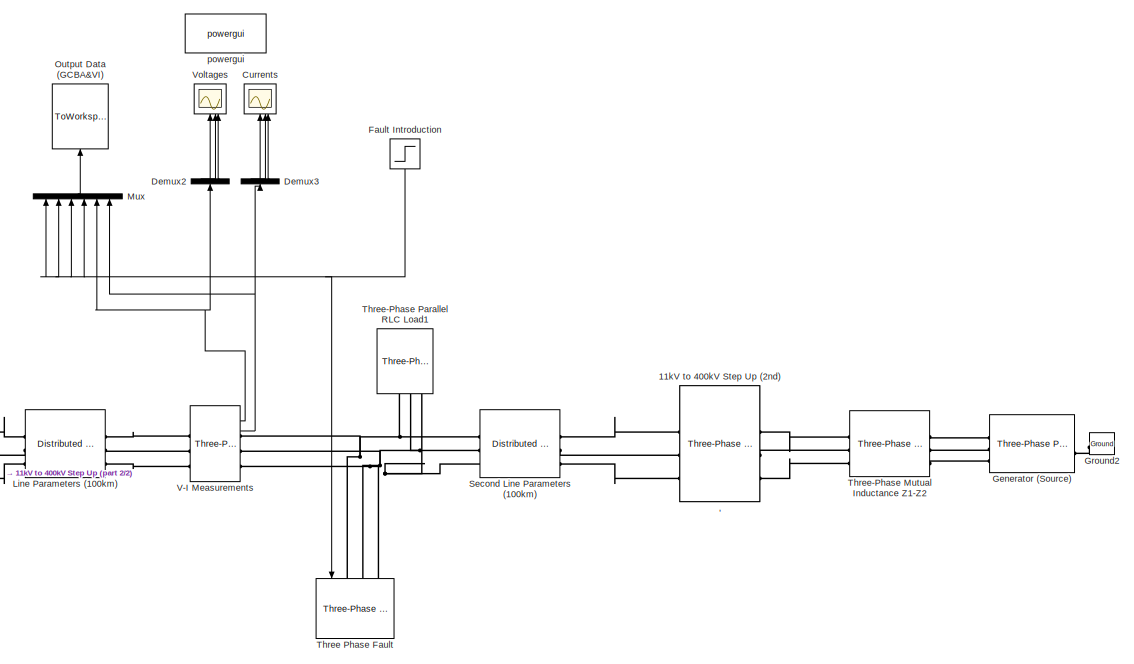
[diagram: root canvas - part 1/2, center side, full height]
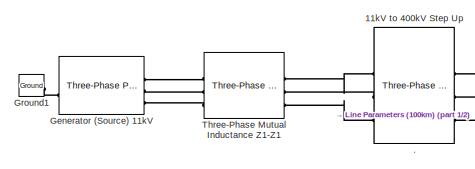
[diagram: root canvas - part 2/2, bottom left region]
MODEL slx_ed49bb780b08
KIND model
CONFIG AbsTol = auto
CONFIG EnableMultiTasking = off
CONFIG FixedStep = auto
CONFIG MaxStep = auto
CONFIG MinStep = auto
CONFIG RelTol = 1e-3
CONFIG SampleTimeConstraint = Unconstrained
CONFIG SolverName = VariableStepAuto
CONFIG StartTime = 0.0
CONFIG StopTime = 1
BLOCK [Reference] ,  REF=spsThreePhaseTransformerTwoWindingsLib/Three-Phase
Transformer
(Two Windings)
  LibrarySourceBlock = sps_lib/Power Grid Elements/Three-Phase\nTransformer\n(Two Windings)
  SourceBlock = spsThreePhaseTransformerTwoWindingsLib/Three-Phase\nTransformer\n(Two Windings)
  SourceType = Three-Phase Transformer (Two Windings)
BLOCK [Reference] .  REF=spsThreePhaseTransformerTwoWindingsLib/Three-Phase
Transformer
(Two Windings)
  LibrarySourceBlock = sps_lib/Power Grid Elements/Three-Phase\nTransformer\n(Two Windings)
  SourceBlock = spsThreePhaseTransformerTwoWindingsLib/Three-Phase\nTransformer\n(Two Windings)
  SourceType = Three-Phase Transformer (Two Windings)
BLOCK [Reference] 11kV to 400kV Step Up  REF=spsThreePhaseTransformerTwoWindingsLib/Three-Phase
Transformer
(Two Windings)
  LibrarySourceBlock = sps_lib/Power Grid Elements/Three-Phase\nTransformer\n(Two Windings)
  SourceBlock = spsThreePhaseTransformerTwoWindingsLib/Three-Phase\nTransformer\n(Two Windings)
  SourceType = Three-Phase Transformer (Two Windings)
BLOCK [Reference] 11kV to 400kV Step Up (2nd)  REF=spsThreePhaseTransformerTwoWindingsLib/Three-Phase
Transformer
(Two Windings)
  LibrarySourceBlock = sps_lib/Power Grid Elements/Three-Phase\nTransformer\n(Two Windings)
  NameLocation = top
  SourceBlock = spsThreePhaseTransformerTwoWindingsLib/Three-Phase\nTransformer\n(Two Windings)
  SourceType = Three-Phase Transformer (Two Windings)
BLOCK [Scope] Currents
  Floating = off
  NameLocation = right
  NumInputPorts = 3
  ScopeSpecificationString = Simulink.scopes.TimeScopeBlockCfg('CurrentConfiguration', extmgr.ConfigurationSet(extmgr.Configuration('Core','General UI',true),extmgr.Configuration('Core','Source UI',true),extmgr.Configuration('Sources','WiredSimulink',true,'DataLoggingVariableName','ScopeData1'),extmgr.Configuration('Visuals','Time Domain',true,'SerializedDisplays',{struct('MinYLimReal','-15.01691','MaxYLimReal','23.92104','YL...<+2783ch>
BLOCK [Demux] Demux2
  NameLocation = right
  Outputs = 3
BLOCK [Demux] Demux3
  NameLocation = right
  Outputs = 3
BLOCK [Step] Fault Introduction
  NameLocation = left
  SampleTime = 0
  Time = 0.1
BLOCK [Reference] Generator (Source)  REF=spsThreePhaseProgrammableVoltageSourceLib/Three-Phase
Programmable
Voltage Source
  LibrarySourceBlock = sps_lib/Sources/Three-Phase\nProgrammable\nVoltage Source
  NameLocation = top
  SourceBlock = spsThreePhaseProgrammableVoltageSourceLib/Three-Phase\nProgrammable\nVoltage Source
  SourceType = Three-Phase Programmable Voltage Source
BLOCK [Reference] Generator (Source) 11kV  REF=spsThreePhaseProgrammableVoltageSourceLib/Three-Phase
Programmable
Voltage Source
  LibrarySourceBlock = sps_lib/Sources/Three-Phase\nProgrammable\nVoltage Source
  SourceBlock = spsThreePhaseProgrammableVoltageSourceLib/Three-Phase\nProgrammable\nVoltage Source
  SourceType = Three-Phase Programmable Voltage Source
BLOCK [Reference] Ground1  REF=spsGroundLib/Ground
  LibrarySourceBlock = sps_lib/Utilities/Ground
  SourceBlock = spsGroundLib/Ground
  SourceType = Ground
BLOCK [Reference] Ground2  REF=spsGroundLib/Ground
  LibrarySourceBlock = sps_lib/Utilities/Ground
  NameLocation = top
  SourceBlock = spsGroundLib/Ground
  SourceType = Ground
BLOCK [Reference] Line Parameters (100km)  REF=spsDistributedParametersLineLib/Distributed Parameters Line
  LibrarySourceBlock = sps_lib/Power Grid Elements/Distributed Parameters Line
  SourceBlock = spsDistributedParametersLineLib/Distributed Parameters Line
  SourceType = Distributed Parameters Line
BLOCK [Mux] Mux
  DisplayOption = bar
  Inputs = 6
  NameLocation = right
BLOCK [ToWorkspace] Output Data (GCBA&VI)
  MaxDataPoints = inf
  NameLocation = right
  SampleTime = -1
  SaveFormat = Timeseries
  VariableName = simout1
BLOCK [Reference] Second Line Parameters (100km)  REF=spsDistributedParametersLineLib/Distributed Parameters Line
  LibrarySourceBlock = sps_lib/Power Grid Elements/Distributed Parameters Line
  NameLocation = top
  SourceBlock = spsDistributedParametersLineLib/Distributed Parameters Line
  SourceType = Distributed Parameters Line
BLOCK [Reference] Three Phase Fault  REF=spsThreePhaseFaultLib/Three-Phase Fault
  LibrarySourceBlock = sps_lib/Power Grid Elements/Three-Phase Fault
  NameLocation = left
  SourceBlock = spsThreePhaseFaultLib/Three-Phase Fault
  SourceType = Three-Phase Fault
BLOCK [Reference] Three-Phase Mutual Inductance Z1-Z1  REF=spsThreePhaseMutualInductanceZ1Z0Lib/Three-Phase
Mutual Inductance
Z1-Z0
  AttributesFormatString = \n
  LibrarySourceBlock = sps_lib/Power Grid Elements/Three-Phase\nMutual Inductance\nZ1-Z0
  SourceBlock = spsThreePhaseMutualInductanceZ1Z0Lib/Three-Phase\nMutual Inductance\nZ1-Z0
  SourceType = Three-Phase Mutual Inductance Z1-Z0
BLOCK [Reference] Three-Phase Mutual Inductance Z1-Z2  REF=spsThreePhaseMutualInductanceZ1Z0Lib/Three-Phase
Mutual Inductance
Z1-Z0
  AttributesFormatString = \n
  LibrarySourceBlock = sps_lib/Power Grid Elements/Three-Phase\nMutual Inductance\nZ1-Z0
  NameLocation = top
  SourceBlock = spsThreePhaseMutualInductanceZ1Z0Lib/Three-Phase\nMutual Inductance\nZ1-Z0
  SourceType = Three-Phase Mutual Inductance Z1-Z0
BLOCK [Reference] Three-Phase Parallel RLC Load1  REF=spsThreePhaseParallelRLCLoadLib/Three-Phase
Parallel RLC Load
  AttributesFormatString = \n
  LibrarySourceBlock = sps_lib/Passives/Three-Phase\nParallel RLC Load
  NameLocation = top
  SourceBlock = spsThreePhaseParallelRLCLoadLib/Three-Phase\nParallel RLC Load
  SourceType = Three-Phase Parallel RLC Load
BLOCK [Reference] V-I Measurements  REF=spsThreePhaseVIMeasurementLib/Three-Phase
V-I Measurement
  LibrarySourceBlock = sps_lib/Sensors and Measurements/Three-Phase\nV-I Measurement
  SourceBlock = spsThreePhaseVIMeasurementLib/Three-Phase\nV-I Measurement
  SourceType = Three-Phase VI Measurement
BLOCK [Scope] Voltages
  Floating = off
  NameLocation = right
  NumInputPorts = 3
  ScopeSpecificationString = Simulink.scopes.TimeScopeBlockCfg('CurrentConfiguration', extmgr.ConfigurationSet(extmgr.Configuration('Core','General UI',true),extmgr.Configuration('Core','Source UI',true),extmgr.Configuration('Sources','WiredSimulink',true,'DataLoggingVariableName','ScopeData2'),extmgr.Configuration('Visuals','Time Domain',true,'SerializedDisplays',{struct('MinYLimReal','-698.14254','MaxYLimReal','698.14258','...<+2800ch>
BLOCK [Reference] powergui  REF=sps_lib/powergui
  LibrarySourceBlock = sps_lib/powergui
  Priority = 1
  SourceBlock = sps_lib/powergui
  SourceType = PSB option menu block
LINE Demux2:1 -> Voltages:1
LINE Demux2:2 -> Voltages:2
LINE Demux2:3 -> Voltages:3
LINE Demux3:1 -> Currents:1
LINE Demux3:2 -> Currents:2
LINE Demux3:3 -> Currents:3
NET Fault Introduction:1 -> Mux:1, Mux:2, Mux:3, Mux:4, Three Phase Fault:1
LINE Mux:1 -> Output Data (GCBA&VI):1
NET V-I Measurements:1 -> Demux2:1, Mux:5
NET V-I Measurements:2 -> Demux3:1, Mux:6
PLINE 11kV to 400kV Step Up (2nd):LConn1 -- Three-Phase Mutual Inductance Z1-Z2:RConn1
PLINE 11kV to 400kV Step Up (2nd):LConn2 -- Three-Phase Mutual Inductance Z1-Z2:RConn2
PLINE 11kV to 400kV Step Up (2nd):LConn3 -- Three-Phase Mutual Inductance Z1-Z2:RConn3
PLINE 11kV to 400kV Step Up (2nd):RConn1 -- Second Line Parameters (100km):LConn1
PLINE 11kV to 400kV Step Up (2nd):RConn2 -- Second Line Parameters (100km):LConn2
PLINE 11kV to 400kV Step Up (2nd):RConn3 -- Second Line Parameters (100km):LConn3
PLINE 11kV to 400kV Step Up:LConn1 -- Three-Phase Mutual Inductance Z1-Z1:RConn1
PLINE 11kV to 400kV Step Up:LConn2 -- Three-Phase Mutual Inductance Z1-Z1:RConn2
PLINE 11kV to 400kV Step Up:LConn3 -- Three-Phase Mutual Inductance Z1-Z1:RConn3
PLINE 11kV to 400kV Step Up:RConn1 -- Line Parameters (100km):LConn1
PLINE 11kV to 400kV Step Up:RConn2 -- Line Parameters (100km):LConn2
PLINE 11kV to 400kV Step Up:RConn3 -- Line Parameters (100km):LConn3
PLINE Generator (Source) 11kV:LConn1 -- Ground1:LConn1
PLINE Generator (Source) 11kV:RConn1 -- Three-Phase Mutual Inductance Z1-Z1:LConn1
PLINE Generator (Source) 11kV:RConn2 -- Three-Phase Mutual Inductance Z1-Z1:LConn2
PLINE Generator (Source) 11kV:RConn3 -- Three-Phase Mutual Inductance Z1-Z1:LConn3
PLINE Generator (Source):LConn1 -- Ground2:LConn1
PLINE Generator (Source):RConn1 -- Three-Phase Mutual Inductance Z1-Z2:LConn1
PLINE Generator (Source):RConn2 -- Three-Phase Mutual Inductance Z1-Z2:LConn2
PLINE Generator (Source):RConn3 -- Three-Phase Mutual Inductance Z1-Z2:LConn3
PLINE Line Parameters (100km):RConn1 -- V-I Measurements:LConn1
PLINE Line Parameters (100km):RConn2 -- V-I Measurements:LConn2
PLINE Line Parameters (100km):RConn3 -- V-I Measurements:LConn3
PNET net1: Second Line Parameters (100km):RConn1 -- Three Phase Fault:LConn1 -- Three-Phase Parallel RLC Load1:LConn1 -- V-I Measurements:RConn1
PNET net2: Second Line Parameters (100km):RConn2 -- Three Phase Fault:LConn2 -- Three-Phase Parallel RLC Load1:LConn2 -- V-I Measurements:RConn2
PNET net3: Second Line Parameters (100km):RConn3 -- Three Phase Fault:LConn3 -- Three-Phase Parallel RLC Load1:LConn3 -- V-I Measurements:RConn3
note: NET lines group one-source signal fan-out (src -> all destinations, sorted); 1:1 wires keep LINE; PNET lines group multi-terminal physical nets as a canonical sorted terminal list (undirected conserving connections); 2-terminal nets keep the pairwise PLINE form
